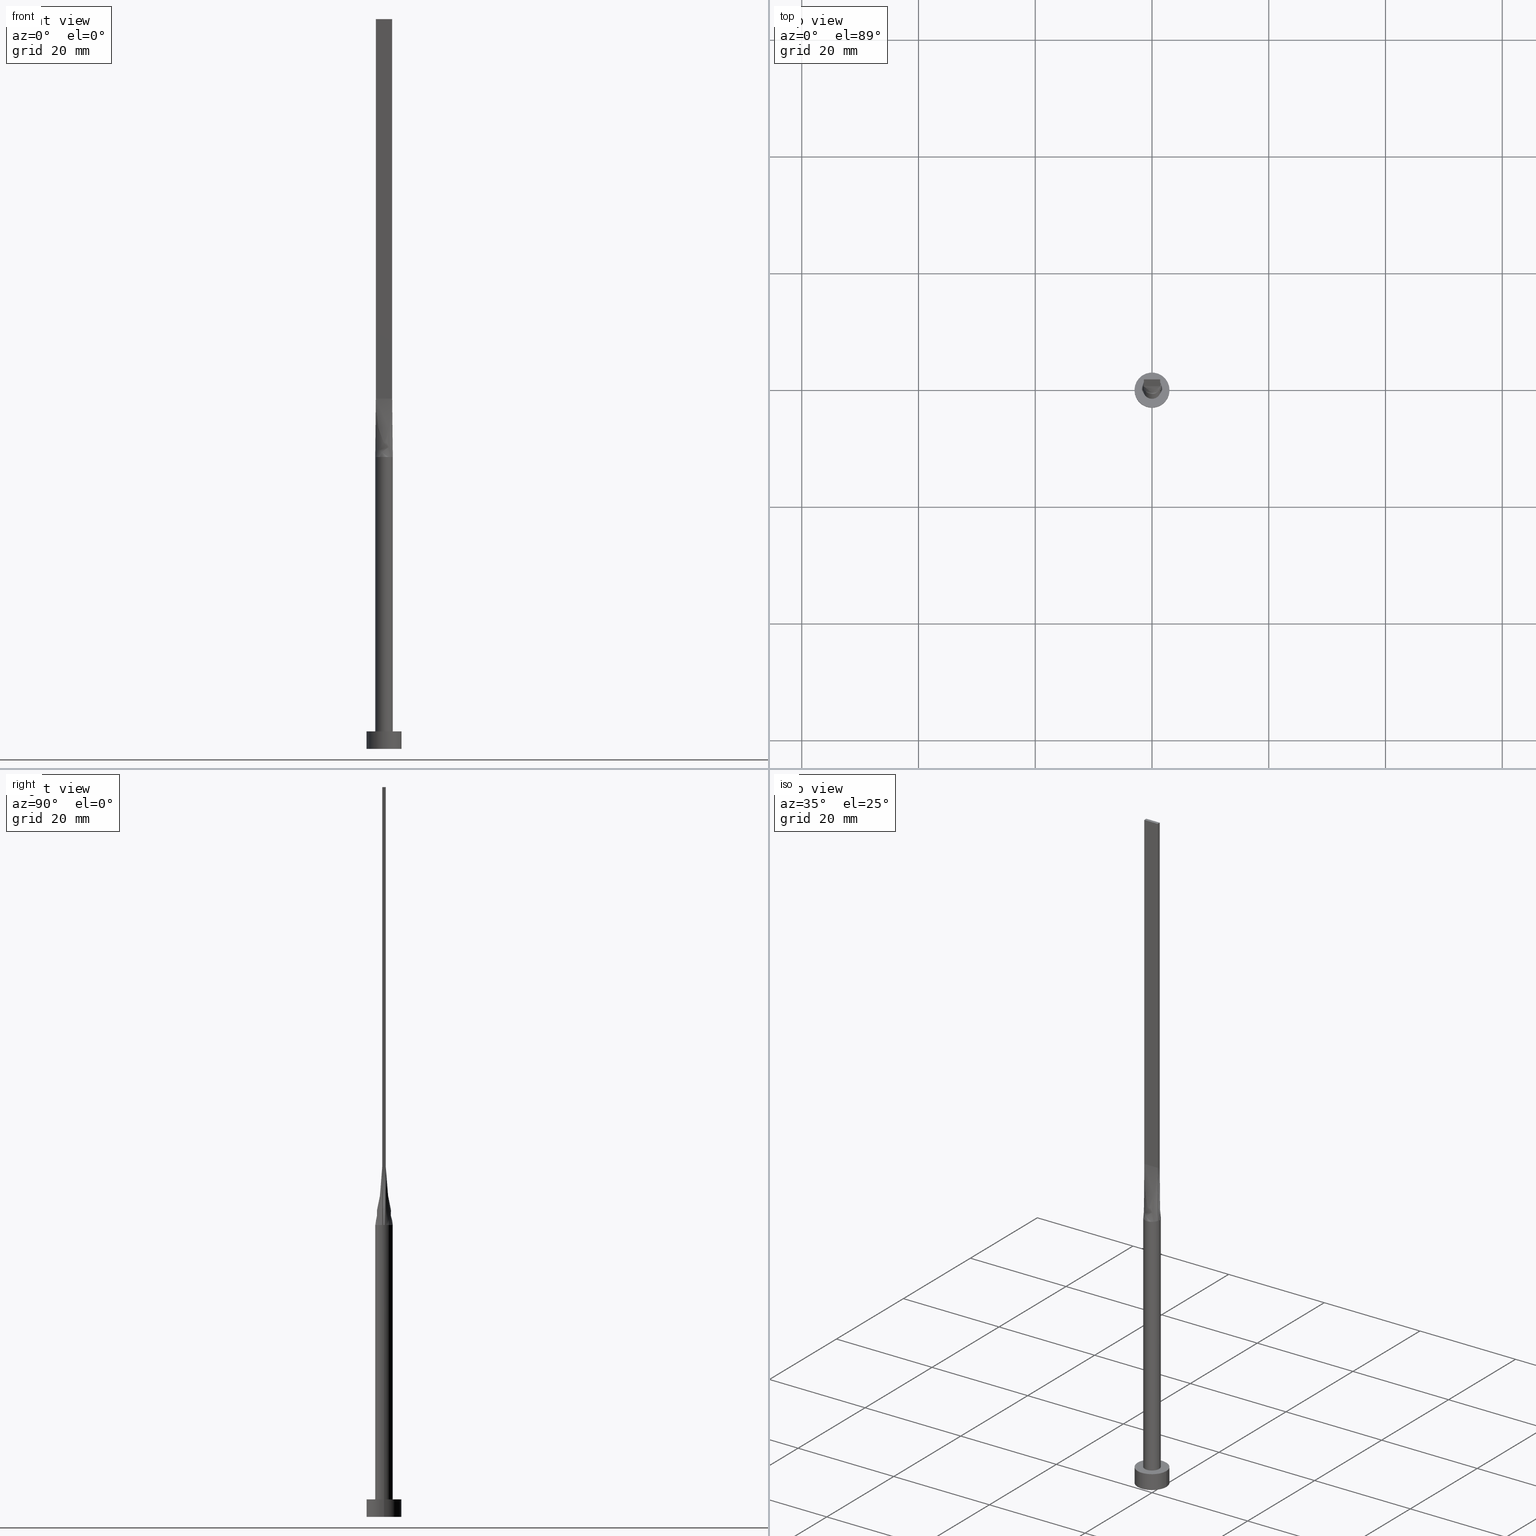
[diagram: canonical four-view strip — front | top / right | iso, engineering-drawing reading convention]
A machine part, canonical four-view strip (front | top / right | iso — engineering-drawing reading convention). The complete STEP part file that produces these views, byte-faithful:
ISO-10303-21;
HEADER;
FILE_DESCRIPTION (( 'STEP AP203' ),
    '1' );
FILE_NAME ('3a38.STEP',
    '2026-02-12T09:00:29',
    ( '' ),
    ( '' ),
    'SwSTEP 2.0',
    'SolidWorks 2019',
    '' );
FILE_SCHEMA (( 'CONFIG_CONTROL_DESIGN' ));
ENDSEC;

DATA;
#1 = DATE_AND_TIME ( #216, #528 ) ;
#2 = CARTESIAN_POINT ( 'NONE',  ( 0.7614511870148451544, -1.306864626778804439, 49.99999999999999289 ) ) ;
#3 = PERSON_AND_ORGANIZATION_ROLE ( 'design_owner' ) ;
#4 = ORIENTED_EDGE ( 'NONE', *, *, #84, .T. ) ;
#5 = CARTESIAN_POINT ( 'NONE',  ( -0.8166666666666674290, -0.2999999999999996003, 60.00000000000000000 ) ) ;
#6 = CARTESIAN_POINT ( 'NONE',  ( 0.9173979595380679086, 1.199399801402031285, 50.00000000000001421 ) ) ;
#7 = CARTESIAN_POINT ( 'NONE',  ( -1.433351810558057160, 0.3071468165481554546, 55.00000000000000711 ) ) ;
#8 = CARTESIAN_POINT ( 'NONE',  ( -0.9173979595380679086, 1.199399801402030397, 50.00000000000000000 ) ) ;
#9 = APPROVAL_DATE_TIME ( #1, #466 ) ;
#10 = VECTOR ( 'NONE', #210, 1000.000000000000000 ) ;
#11 = VERTEX_POINT ( 'NONE', #441 ) ;
#12 = DIRECTION ( 'NONE',  ( 1.000000000000000000, 0.000000000000000000, 0.000000000000000000 ) ) ;
#13 = LINE ( 'NONE', #494, #289 ) ;
#14 = ORIENTED_EDGE ( 'NONE', *, *, #550, .F. ) ;
#15 = CARTESIAN_POINT ( 'NONE',  ( -1.399999999999999689, 0.3000000000000002109, 125.0000000000000000 ) ) ;
#16 = CARTESIAN_POINT ( 'NONE',  ( -1.399999999999999911, -0.2999999999999996003, 60.00000000000000711 ) ) ;
#17 = CC_DESIGN_APPROVAL ( #505, ( #122 ) ) ;
#18 = APPROVAL_PERSON_ORGANIZATION ( #188, #300, #486 ) ;
#19 = CARTESIAN_POINT ( 'NONE',  ( 1.399999999999999689, 0.3000000000000002109, 125.0000000000000000 ) ) ;
#20 = ORIENTED_EDGE ( 'NONE', *, *, #228, .F. ) ;
#21 = EDGE_LOOP ( 'NONE', ( #497, #92, #192, #555, #14 ) ) ;
#22 = CARTESIAN_POINT ( 'NONE',  ( 0.000000000000000000, 0.000000000000000000, 3.000000000000000000 ) ) ;
#23 = LINE ( 'NONE', #297, #488 ) ;
#24 = EDGE_LOOP ( 'NONE', ( #70, #429 ) ) ;
#25 = DIRECTION ( 'NONE',  ( 1.000000000000000000, 0.000000000000000000, -0.000000000000000000 ) ) ;
#26 = CARTESIAN_POINT ( 'NONE',  ( 1.399999999999999689, 0.3000000000000002109, 60.00000000000000711 ) ) ;
#27 = CC_DESIGN_DATE_AND_TIME_ASSIGNMENT ( #462, #193, ( #120 ) ) ;
#28 = CARTESIAN_POINT ( 'NONE',  ( 1.399999999999999689, 0.3000000000000002109, 125.0000000000000000 ) ) ;
#29 = LINE ( 'NONE', #211, #119 ) ;
#30 = AXIS2_PLACEMENT_3D ( 'NONE', #397, #521, #436 ) ;
#31 = EDGE_LOOP ( 'NONE', ( #358, #563 ) ) ;
#32 = B_SPLINE_SURFACE_WITH_KNOTS ( 'NONE', 3, 1, ( 
 ( #191, #543 ),
 ( #136, #91 ),
 ( #86, #227 ),
 ( #372, #279 ),
 ( #285, #538 ),
 ( #6, #181 ),
 ( #359, #133 ),
 ( #459, #316 ),
 ( #52, #315 ),
 ( #493, #366 ),
 ( #414, #89 ),
 ( #276, #456 ),
 ( #8, #186 ),
 ( #520, #331 ),
 ( #522, #513 ),
 ( #112, #107 ),
 ( #114, #69 ),
 ( #440, #260 ) ),
 .UNSPECIFIED., .F., .F., .F.,
 ( 4, 2, 2, 2, 2, 2, 2, 2, 4 ),
 ( 2, 2 ),
 ( 0.000000000000000000, 0.1249999999999999445, 0.2499999999999998890, 0.3749999999999998890, 0.4999999999999998890, 0.6249999999999998890, 0.7500000000000000000, 0.8749999999999998890, 1.000000000000000000 ),
 ( 0.000000000000000000, 1.000000000000000000 ),
 .UNSPECIFIED. ) ;
#33 =( NAMED_UNIT ( * ) SI_UNIT ( $, .STERADIAN. ) SOLID_ANGLE_UNIT ( ) );
#34 = PLANE ( 'NONE',  #226 ) ;
#35 =( LENGTH_UNIT ( ) NAMED_UNIT ( * ) SI_UNIT ( .MILLI., .METRE. ) );
#36 = ADVANCED_FACE ( 'NONE', ( #537 ), #525, .T. ) ;
#37 = CARTESIAN_POINT ( 'NONE',  ( 0.1166666666666654889, -0.2999999999999997113, 60.00000000000000000 ) ) ;
#38 = APPROVAL_DATE_TIME ( #326, #505 ) ;
#39 = VECTOR ( 'NONE', #383, 1000.000000000000000 ) ;
#40 = FACE_OUTER_BOUND ( 'NONE', #24, .T. ) ;
#41 = CARTESIAN_POINT ( 'NONE',  ( 0.000000000000000000, 0.000000000000000000, 50.00000000000000000 ) ) ;
#42 = PERSON_AND_ORGANIZATION ( #420, #73 ) ;
#43 = EDGE_CURVE ( 'NONE', #208, #387, #396, .T. ) ;
#44 = ADVANCED_FACE ( 'NONE', ( #40 ), #348, .F. ) ;
#45 = EDGE_CURVE ( 'NONE', #363, #88, #159, .T. ) ;
#46 = DIRECTION ( 'NONE',  ( -1.000000000000000000, 0.000000000000000000, 0.000000000000000000 ) ) ;
#47 = CARTESIAN_POINT ( 'NONE',  ( 1.399999999999999689, 0.3000000000000002109, 125.0000000000000000 ) ) ;
#48 = AXIS2_PLACEMENT_3D ( 'NONE', #322, #501, #357 ) ;
#49 = CC_DESIGN_APPROVAL ( #466, ( #558 ) ) ;
#50 = ORIENTED_EDGE ( 'NONE', *, *, #580, .T. ) ;
#51 = DIRECTION ( 'NONE',  ( 0.000000000000000000, 0.000000000000000000, 1.000000000000000000 ) ) ;
#52 = CARTESIAN_POINT ( 'NONE',  ( 0.2021039475585061640, 1.500000000000000222, 50.00000000000000000 ) ) ;
#53 = CARTESIAN_POINT ( 'NONE',  ( -0.9173979595380679086, 1.199399801402030397, 50.00000000000000000 ) ) ;
#54 = DIRECTION ( 'NONE',  ( 1.000000000000000000, 0.000000000000000000, 0.000000000000000000 ) ) ;
#55 = ORIENTED_EDGE ( 'NONE', *, *, #109, .T. ) ;
#56 = CARTESIAN_POINT ( 'NONE',  ( -0.7614511870148460426, 1.306864626778804661, 49.99999999999999289 ) ) ;
#57 = CARTESIAN_POINT ( 'NONE',  ( -1.399999999999999689, 0.3000000000000002109, 60.00000000000000711 ) ) ;
#58 = CARTESIAN_POINT ( 'NONE',  ( -0.4035854070682471928, 1.457676878506885432, 50.00000000000000000 ) ) ;
#59 = ORIENTED_EDGE ( 'NONE', *, *, #75, .T. ) ;
#60 = AXIS2_PLACEMENT_3D ( 'NONE', #388, #263, #259 ) ;
#61 = CARTESIAN_POINT ( 'NONE',  ( 1.398339371956842880, 0.5625704264602660043, 50.00000000000000000 ) ) ;
#62 = CARTESIAN_POINT ( 'NONE',  ( 0.000000000000000000, 0.000000000000000000, 50.00000000000000000 ) ) ;
#63 = ORIENTED_EDGE ( 'NONE', *, *, #182, .T. ) ;
#64 = CYLINDRICAL_SURFACE ( 'NONE', #257, 1.500000000000000222 ) ;
#65 = DIRECTION ( 'NONE',  ( -0.006670206908340743472, -0.001429330051787282068, -0.9999767324070110153 ) ) ;
#66 = EDGE_CURVE ( 'NONE', #88, #542, #90, .T. ) ;
#67 = ORIENTED_EDGE ( 'NONE', *, *, #84, .F. ) ;
#68 = PLANE ( 'NONE',  #60 ) ;
#69 = CARTESIAN_POINT ( 'NONE',  ( -1.283333333333332993, 0.3000000000000002665, 60.00000000000000000 ) ) ;
#70 = ORIENTED_EDGE ( 'NONE', *, *, #158, .F. ) ;
#71 = FACE_OUTER_BOUND ( 'NONE', #470, .T. ) ;
#72 = CARTESIAN_POINT ( 'NONE',  ( 1.399999999999999689, 0.2000000000000001499, 60.00000000000000000 ) ) ;
#73 = ORGANIZATION ( 'NEUR�EN�', 'NEUR�EN�', '' ) ;
#74 = DIRECTION ( 'NONE',  ( 1.000000000000000000, 0.000000000000000000, 0.000000000000000000 ) ) ;
#75 = EDGE_CURVE ( 'NONE', #433, #155, #85, .T. ) ;
#76 = CARTESIAN_POINT ( 'NONE',  ( 0.000000000000000000, 0.000000000000000000, 50.00000000000000000 ) ) ;
#77 = CARTESIAN_POINT ( 'NONE',  ( 1.433351810558057160, -0.3071468165481548440, 55.00000000000000711 ) ) ;
#78 = FACE_OUTER_BOUND ( 'NONE', #185, .T. ) ;
#79 = APPLICATION_PROTOCOL_DEFINITION ( 'international standard', 'config_control_design', 1994, #477 ) ;
#80 = AXIS2_PLACEMENT_3D ( 'NONE', #206, #434, #113 ) ;
#81 = CARTESIAN_POINT ( 'NONE',  ( 0.9333333333333325710, -0.2999999999999997113, 60.00000000000000000 ) ) ;
#82 = DIRECTION ( 'NONE',  ( 0.000000000000000000, 0.000000000000000000, 1.000000000000000000 ) ) ;
#83 = ORIENTED_EDGE ( 'NONE', *, *, #530, .T. ) ;
#84 = EDGE_CURVE ( 'NONE', #367, #239, #268, .T. ) ;
#85 = LINE ( 'NONE', #314, #518 ) ;
#86 = CARTESIAN_POINT ( 'NONE',  ( 1.398339371956842880, 0.5625704264602660043, 50.00000000000000000 ) ) ;
#87 = ORIENTED_EDGE ( 'NONE', *, *, #43, .F. ) ;
#88 = VERTEX_POINT ( 'NONE', #534 ) ;
#89 = CARTESIAN_POINT ( 'NONE',  ( -0.2333333333333325599, 0.3000000000000001554, 60.00000000000000000 ) ) ;
#90 = CIRCLE ( 'NONE', #417, 1.500000000000000222 ) ;
#91 = CARTESIAN_POINT ( 'NONE',  ( 1.283333333333333215, 0.3000000000000002109, 60.00000000000000711 ) ) ;
#92 = ORIENTED_EDGE ( 'NONE', *, *, #66, .T. ) ;
#93 = VERTEX_POINT ( 'NONE', #529 ) ;
#94 = ADVANCED_FACE ( 'NONE', ( #78 ), #117, .T. ) ;
#95 = ORIENTED_EDGE ( 'NONE', *, *, #580, .F. ) ;
#96 = CARTESIAN_POINT ( 'NONE',  ( -0.2021039475585064971, 1.499999999999999556, 50.00000000000000711 ) ) ;
#97 = CARTESIAN_POINT ( 'NONE',  ( -1.399999999999999689, 0.3000000000000002109, 125.0000000000000000 ) ) ;
#98 = APPROVAL_STATUS ( 'not_yet_approved' ) ;
#99 = ORIENTED_EDGE ( 'NONE', *, *, #347, .T. ) ;
#100 = CARTESIAN_POINT ( 'NONE',  ( -1.466842056764351865, 0.3143233427268645186, 50.00000000000000000 ) ) ;
#101 = DATE_AND_TIME ( #224, #381 ) ;
#102 = CARTESIAN_POINT ( 'NONE',  ( -1.441093865018553410, 0.4338058282182611913, 49.99999999999999289 ) ) ;
#103 = B_SPLINE_CURVE_WITH_KNOTS ( 'NONE', 3,
 ( #321, #106, #61, #246, #460, #431, #292, #329, #241, #96, #58, #56, #53, #190, #325, #468, #102, #100 ),
 .UNSPECIFIED., .F., .F.,
 ( 4, 2, 2, 2, 2, 2, 2, 2, 4 ),
 ( 0.000000000000000000, 0.1249999999999999445, 0.2499999999999998890, 0.3749999999999998890, 0.4999999999999998890, 0.6249999999999998890, 0.7500000000000000000, 0.8749999999999998890, 1.000000000000000000 ),
 .UNSPECIFIED. ) ;
#104 = CARTESIAN_POINT ( 'NONE',  ( 0.000000000000000000, 0.000000000000000000, 125.0000000000000000 ) ) ;
#105 = VERTEX_POINT ( 'NONE', #141 ) ;
#106 = CARTESIAN_POINT ( 'NONE',  ( 1.441093865018553410, 0.4338058282182615244, 50.00000000000000000 ) ) ;
#107 = CARTESIAN_POINT ( 'NONE',  ( -1.166666666666666075, 0.3000000000000002665, 60.00000000000000000 ) ) ;
#108 = ORIENTED_EDGE ( 'NONE', *, *, #43, .T. ) ;
#109 = EDGE_CURVE ( 'NONE', #143, #382, #272, .T. ) ;
#110 = VECTOR ( 'NONE', #288, 1000.000000000000000 ) ;
#111 = DIRECTION ( 'NONE',  ( -0.000000000000000000, -0.000000000000000000, -1.000000000000000000 ) ) ;
#112 = CARTESIAN_POINT ( 'NONE',  ( -1.398339371956843102, 0.5625704264602656712, 49.99999999999997868 ) ) ;
#113 = DIRECTION ( 'NONE',  ( -1.000000000000000000, 5.808225924029488744E-17, 0.000000000000000000 ) ) ;
#114 = CARTESIAN_POINT ( 'NONE',  ( -1.441093865018553410, 0.4338058282182611913, 49.99999999999999289 ) ) ;
#115 = DIRECTION ( 'NONE',  ( 1.000000000000000000, -3.614007241618349264E-16, 0.000000000000000000 ) ) ;
#116 = CARTESIAN_POINT ( 'NONE',  ( 1.399999999999999911, -0.1999999999999997891, 60.00000000000000000 ) ) ;
#117 = B_SPLINE_SURFACE_WITH_KNOTS ( 'NONE', 3, 1, ( 
 ( #124, #127 ),
 ( #126, #215 ),
 ( #399, #308 ),
 ( #451, #409 ),
 ( #578, #5 ),
 ( #484, #180 ),
 ( #262, #536 ),
 ( #132, #265 ),
 ( #443, #450 ),
 ( #310, #37 ),
 ( #171, #223 ),
 ( #2, #581 ),
 ( #405, #174 ),
 ( #351, #311 ),
 ( #489, #81 ),
 ( #547, #452 ),
 ( #553, #234 ),
 ( #540, #413 ) ),
 .UNSPECIFIED., .F., .F., .F.,
 ( 4, 2, 2, 2, 2, 2, 2, 2, 4 ),
 ( 2, 2 ),
 ( 0.000000000000000000, 0.1250000000000000000, 0.2500000000000000000, 0.3750000000000000000, 0.5000000000000000000, 0.6250000000000000000, 0.7500000000000000000, 0.8750000000000000000, 1.000000000000000000 ),
 ( 0.000000000000000000, 1.000000000000000000 ),
 .UNSPECIFIED. ) ;
#118 = CYLINDRICAL_SURFACE ( 'NONE', #454, 1.500000000000000222 ) ;
#119 = VECTOR ( 'NONE', #164, 1000.000000000000000 ) ;
#120 = SECURITY_CLASSIFICATION ( '', '', #286 ) ;
#121 = EDGE_CURVE ( 'NONE', #93, #387, #461, .T. ) ;
#122 = PRODUCT_DEFINITION ( 'NEZN�M�', '', #558, #177 ) ;
#123 = EDGE_CURVE ( 'NONE', #239, #162, #187, .T. ) ;
#124 = CARTESIAN_POINT ( 'NONE',  ( -1.466703621116114409, -0.3142936330963096436, 50.00000000000000000 ) ) ;
#125 = PLANE ( 'NONE',  #80 ) ;
#126 = CARTESIAN_POINT ( 'NONE',  ( -1.441093865018553632, -0.4338058282182608583, 50.00000000000001421 ) ) ;
#127 = CARTESIAN_POINT ( 'NONE',  ( -1.399999999999999911, -0.2999999999999996003, 60.00000000000000711 ) ) ;
#128 = EDGE_CURVE ( 'NONE', #367, #105, #305, .T. ) ;
#129 = MECHANICAL_CONTEXT ( 'NONE', #477, 'mechanical' ) ;
#130 = ORIENTED_EDGE ( 'NONE', *, *, #301, .F. ) ;
#131 = AXIS2_PLACEMENT_3D ( 'NONE', #333, #564, #261 ) ;
#132 = CARTESIAN_POINT ( 'NONE',  ( -0.4035854070682473038, -1.457676878506884988, 50.00000000000000711 ) ) ;
#133 = CARTESIAN_POINT ( 'NONE',  ( 0.4666666666666673402, 0.3000000000000001554, 60.00000000000000000 ) ) ;
#134 = DIRECTION ( 'NONE',  ( 0.006670206908340743472, -0.001429330051787325653, 0.9999767324070110153 ) ) ;
#135 = VERTEX_POINT ( 'NONE', #97 ) ;
#136 = CARTESIAN_POINT ( 'NONE',  ( 1.441093865018553410, 0.4338058282182615244, 50.00000000000000000 ) ) ;
#137 = AXIS2_PLACEMENT_3D ( 'NONE', #184, #231, #54 ) ;
#138 = COORDINATED_UNIVERSAL_TIME_OFFSET ( 1, 0, .AHEAD. ) ;
#139 = ORIENTED_EDGE ( 'NONE', *, *, #377, .F. ) ;
#140 = DIRECTION ( 'NONE',  ( 0.000000000000000000, 0.000000000000000000, 1.000000000000000000 ) ) ;
#141 = CARTESIAN_POINT ( 'NONE',  ( -3.000000000000000444, 0.000000000000000000, 3.000000000000000000 ) ) ;
#142 = ORIENTED_EDGE ( 'NONE', *, *, #182, .F. ) ;
#143 = VERTEX_POINT ( 'NONE', #411 ) ;
#144 = PERSON_AND_ORGANIZATION ( #420, #73 ) ;
#145 = EDGE_LOOP ( 'NONE', ( #67, #551, #492, #323 ) ) ;
#146 = LINE ( 'NONE', #561, #317 ) ;
#147 = DIRECTION ( 'NONE',  ( 1.000000000000000000, 0.000000000000000000, 0.000000000000000000 ) ) ;
#148 = CALENDAR_DATE ( 2026, 12, 2 ) ;
#149 = EDGE_CURVE ( 'NONE', #248, #433, #13, .T. ) ;
#150 = CARTESIAN_POINT ( 'NONE',  ( -1.399999999999999689, 0.1000000000000004913, 60.00000000000000000 ) ) ;
#151 = CIRCLE ( 'NONE', #343, 1.500000000000000222 ) ;
#152 = LOCAL_TIME ( 10, 0, 29.00000000000000000, #416 ) ;
#153 = DIRECTION ( 'NONE',  ( -3.614007241618349264E-16, -1.000000000000000000, 0.000000000000000000 ) ) ;
#154 = CARTESIAN_POINT ( 'NONE',  ( 0.000000000000000000, 0.000000000000000000, 3.000000000000000000 ) ) ;
#155 = VERTEX_POINT ( 'NONE', #47 ) ;
#156 = DIRECTION ( 'NONE',  ( 3.614007241618349264E-16, 1.000000000000000000, 0.000000000000000000 ) ) ;
#157 = CARTESIAN_POINT ( 'NONE',  ( 1.399999999999999911, -0.2999999999999997669, 60.00000000000000711 ) ) ;
#158 = EDGE_CURVE ( 'NONE', #162, #239, #544, .T. ) ;
#159 = CIRCLE ( 'NONE', #356, 1.500000000000000222 ) ;
#160 = FACE_OUTER_BOUND ( 'NONE', #244, .T. ) ;
#161 = CARTESIAN_POINT ( 'NONE',  ( -1.399999999999999911, -0.2999999999999996003, 125.0000000000000000 ) ) ;
#162 = VERTEX_POINT ( 'NONE', #318 ) ;
#163 = FACE_OUTER_BOUND ( 'NONE', #490, .T. ) ;
#164 = DIRECTION ( 'NONE',  ( -0.000000000000000000, -0.000000000000000000, -1.000000000000000000 ) ) ;
#165 = ADVANCED_FACE ( 'NONE', ( #362 ), #32, .T. ) ;
#166 = DIRECTION ( 'NONE',  ( 0.000000000000000000, 0.000000000000000000, 1.000000000000000000 ) ) ;
#167 = FACE_OUTER_BOUND ( 'NONE', #21, .T. ) ;
#168 = ADVANCED_FACE ( 'NONE', ( #340, #386 ), #34, .T. ) ;
#169 = B_SPLINE_SURFACE_WITH_KNOTS ( 'NONE', 3, 1, ( 
 ( #342, #157 ),
 ( #251, #116 ),
 ( #247, #432 ),
 ( #303, #480 ),
 ( #435, #72 ),
 ( #334, #26 ) ),
 .UNSPECIFIED., .F., .F., .F.,
 ( 4, 2, 4 ),
 ( 2, 2 ),
 ( 0.000000000000000000, 0.5000000000000000000, 1.000000000000000000 ),
 ( 0.000000000000000000, 1.000000000000000000 ),
 .UNSPECIFIED. ) ;
#170 = DIRECTION ( 'NONE',  ( 0.000000000000000000, 0.000000000000000000, 1.000000000000000000 ) ) ;
#171 = CARTESIAN_POINT ( 'NONE',  ( 0.4035854070682468042, -1.457676878506885210, 50.00000000000000000 ) ) ;
#172 = COORDINATED_UNIVERSAL_TIME_OFFSET ( 1, 0, .AHEAD. ) ;
#173 = CC_DESIGN_PERSON_AND_ORGANIZATION_ASSIGNMENT ( #42, #498, ( #122 ) ) ;
#174 = CARTESIAN_POINT ( 'NONE',  ( 0.5833333333333323711, -0.2999999999999997113, 60.00000000000000000 ) ) ;
#175 = DATE_AND_TIME ( #349, #455 ) ;
#176 = DIRECTION ( 'NONE',  ( 1.000000000000000000, 0.000000000000000000, 0.000000000000000000 ) ) ;
#177 = DESIGN_CONTEXT ( 'detailed design', #378, 'design' ) ;
#178 = DIRECTION ( 'NONE',  ( -0.000000000000000000, -0.000000000000000000, -1.000000000000000000 ) ) ;
#179 = AXIS2_PLACEMENT_3D ( 'NONE', #355, #82, #421 ) ;
#180 = CARTESIAN_POINT ( 'NONE',  ( -0.5833333333333343695, -0.2999999999999996558, 60.00000000000000000 ) ) ;
#181 = CARTESIAN_POINT ( 'NONE',  ( 0.5833333333333339255, 0.3000000000000001554, 60.00000000000000000 ) ) ;
#182 = EDGE_CURVE ( 'NONE', #135, #387, #567, .T. ) ;
#183 = EDGE_CURVE ( 'NONE', #248, #545, #389, .T. ) ;
#184 = CARTESIAN_POINT ( 'NONE',  ( 0.000000000000000000, 0.000000000000000000, 0.000000000000000000 ) ) ;
#185 = EDGE_LOOP ( 'NONE', ( #412, #360, #533, #350 ) ) ;
#186 = CARTESIAN_POINT ( 'NONE',  ( -0.5833333333333327042, 0.3000000000000002109, 60.00000000000000000 ) ) ;
#187 = CIRCLE ( 'NONE', #137, 3.000000000000000444 ) ;
#188 = PERSON_AND_ORGANIZATION ( #420, #73 ) ;
#189 = EDGE_LOOP ( 'NONE', ( #474, #4, #256, #249 ) ) ;
#190 = CARTESIAN_POINT ( 'NONE',  ( -1.167251067653078289, 0.9579686032593087708, 50.00000000000001421 ) ) ;
#191 = CARTESIAN_POINT ( 'NONE',  ( 1.466703621116114409, 0.3142936330963102542, 50.00000000000000000 ) ) ;
#192 = ORIENTED_EDGE ( 'NONE', *, *, #301, .T. ) ;
#193 = DATE_TIME_ROLE ( 'classification_date' ) ;
#194 = PRODUCT_RELATED_PRODUCT_CATEGORY ( 'detail', '', ( #403 ) ) ;
#195 = EDGE_CURVE ( 'NONE', #545, #11, #23, .T. ) ;
#196 = ORIENTED_EDGE ( 'NONE', *, *, #183, .T. ) ;
#197 = CARTESIAN_POINT ( 'NONE',  ( -1.488654840628309328, 0.2118546087060662608, 50.00000000000000000 ) ) ;
#198 = CARTESIAN_POINT ( 'NONE',  ( -3.000000000000000444, 0.000000000000000000, 3.000000000000000000 ) ) ;
#199 = CC_DESIGN_SECURITY_CLASSIFICATION ( #120, ( #558 ) ) ;
#200 = DIRECTION ( 'NONE',  ( -1.000000000000000000, 0.000000000000000000, 0.000000000000000000 ) ) ;
#201 = EDGE_LOOP ( 'NONE', ( #504, #20, #205, #196 ) ) ;
#202 = ORIENTED_EDGE ( 'NONE', *, *, #425, .F. ) ;
#203 = DIRECTION ( 'NONE',  ( -0.000000000000000000, -0.000000000000000000, -1.000000000000000000 ) ) ;
#204 = FACE_OUTER_BOUND ( 'NONE', #235, .T. ) ;
#205 = ORIENTED_EDGE ( 'NONE', *, *, #149, .F. ) ;
#206 = CARTESIAN_POINT ( 'NONE',  ( -1.399999999999999911, -0.2999999999999996003, 125.0000000000000000 ) ) ;
#207 = CARTESIAN_POINT ( 'NONE',  ( 1.399999999999999689, 0.3000000000000002109, 60.00000000000000711 ) ) ;
#208 = VERTEX_POINT ( 'NONE', #478 ) ;
#209 = VECTOR ( 'NONE', #203, 1000.000000000000000 ) ;
#210 = DIRECTION ( 'NONE',  ( -0.000000000000000000, -0.000000000000000000, -1.000000000000000000 ) ) ;
#211 = CARTESIAN_POINT ( 'NONE',  ( 1.399999999999999911, -0.2999999999999997669, 125.0000000000000000 ) ) ;
#212 = DIRECTION ( 'NONE',  ( -0.000000000000000000, -0.000000000000000000, -1.000000000000000000 ) ) ;
#213 = DIRECTION ( 'NONE',  ( -0.000000000000000000, -0.000000000000000000, -1.000000000000000000 ) ) ;
#214 = CARTESIAN_POINT ( 'NONE',  ( 1.399999999999999911, -0.2999999999999997669, 125.0000000000000000 ) ) ;
#215 = CARTESIAN_POINT ( 'NONE',  ( -1.283333333333333437, -0.2999999999999996003, 60.00000000000000711 ) ) ;
#216 = CALENDAR_DATE ( 2026, 12, 2 ) ;
#217 = VECTOR ( 'NONE', #491, 1000.000000000000000 ) ;
#218 = VERTEX_POINT ( 'NONE', #394 ) ;
#219 = ADVANCED_FACE ( 'NONE', ( #294 ), #476, .T. ) ;
#220 = CARTESIAN_POINT ( 'NONE',  ( 0.000000000000000000, 0.000000000000000000, 0.000000000000000000 ) ) ;
#221 = APPROVAL_ROLE ( '' ) ;
#222 = PRODUCT_DEFINITION_SHAPE ( 'NONE', 'NONE',  #122 ) ;
#223 = CARTESIAN_POINT ( 'NONE',  ( 0.2333333333333321713, -0.2999999999999997113, 60.00000000000000000 ) ) ;
#224 = CALENDAR_DATE ( 2026, 12, 2 ) ;
#225 = DIRECTION ( 'NONE',  ( -1.000000000000000000, -0.000000000000000000, -0.000000000000000000 ) ) ;
#226 = AXIS2_PLACEMENT_3D ( 'NONE', #338, #573, #392 ) ;
#227 = CARTESIAN_POINT ( 'NONE',  ( 1.166666666666666741, 0.3000000000000002109, 60.00000000000000711 ) ) ;
#228 = EDGE_CURVE ( 'NONE', #433, #407, #29, .T. ) ;
#229 = ADVANCED_FACE ( 'NONE', ( #204 ), #118, .T. ) ;
#230 = DIRECTION ( 'NONE',  ( 1.000000000000000000, -5.808225924029488744E-17, 0.000000000000000000 ) ) ;
#231 = DIRECTION ( 'NONE',  ( 0.000000000000000000, 0.000000000000000000, 1.000000000000000000 ) ) ;
#232 = PERSON_AND_ORGANIZATION_ROLE ( 'design_supplier' ) ;
#233 = CARTESIAN_POINT ( 'NONE',  ( 3.000000000000000444, 3.673940397442060361E-16, 3.000000000000000000 ) ) ;
#234 = CARTESIAN_POINT ( 'NONE',  ( 1.283333333333332993, -0.2999999999999997113, 60.00000000000000000 ) ) ;
#235 = EDGE_LOOP ( 'NONE', ( #202, #287, #535, #463, #55, #430 ) ) ;
#236 = ADVANCED_FACE ( 'NONE', ( #167 ), #169, .T. ) ;
#237 = CIRCLE ( 'NONE', #527, 1.500000000000000222 ) ;
#238 = PERSON_AND_ORGANIZATION_ROLE ( 'classification_officer' ) ;
#239 = VERTEX_POINT ( 'NONE', #526 ) ;
#240 = CARTESIAN_POINT ( 'NONE',  ( 1.433351810558057160, 0.3071468165481550106, 55.00000000000000711 ) ) ;
#241 = CARTESIAN_POINT ( 'NONE',  ( 0.2021039475585061640, 1.500000000000000222, 50.00000000000000000 ) ) ;
#242 = CARTESIAN_POINT ( 'NONE',  ( -1.399999999999999911, -0.2999999999999996003, 125.0000000000000000 ) ) ;
#243 =( GEOMETRIC_REPRESENTATION_CONTEXT ( 3 ) GLOBAL_UNCERTAINTY_ASSIGNED_CONTEXT ( ( #481 ) ) GLOBAL_UNIT_ASSIGNED_CONTEXT ( ( #35, #309, #33 ) ) REPRESENTATION_CONTEXT ( 'NONE', 'WORKASPACE' ) );
#244 = EDGE_LOOP ( 'NONE', ( #252, #560, #370, #63 ) ) ;
#245 = EDGE_CURVE ( 'NONE', #407, #208, #307, .T. ) ;
#246 = CARTESIAN_POINT ( 'NONE',  ( 1.261673556793541540, 0.8246322331683844098, 49.99999999999999289 ) ) ;
#247 = CARTESIAN_POINT ( 'NONE',  ( 1.499630450384406899, -0.1059273043530333108, 50.00000000000000000 ) ) ;
#248 = VERTEX_POINT ( 'NONE', #242 ) ;
#249 = ORIENTED_EDGE ( 'NONE', *, *, #395, .F. ) ;
#250 = DIRECTION ( 'NONE',  ( 0.000000000000000000, 0.000000000000000000, 1.000000000000000000 ) ) ;
#251 = CARTESIAN_POINT ( 'NONE',  ( 1.488654840628309328, -0.2118546087060664274, 50.00000000000000000 ) ) ;
#252 = ORIENTED_EDGE ( 'NONE', *, *, #336, .T. ) ;
#253 = LINE ( 'NONE', #570, #209 ) ;
#254 = DIRECTION ( 'NONE',  ( -1.000000000000000000, 0.000000000000000000, 0.000000000000000000 ) ) ;
#255 = CC_DESIGN_PERSON_AND_ORGANIZATION_ASSIGNMENT ( #507, #238, ( #120 ) ) ;
#256 = ORIENTED_EDGE ( 'NONE', *, *, #123, .T. ) ;
#257 = AXIS2_PLACEMENT_3D ( 'NONE', #444, #111, #442 ) ;
#258 = MANIFOLD_SOLID_BREP ( 'P�idat vysunut�m5', #304 ) ;
#259 = DIRECTION ( 'NONE',  ( 0.000000000000000000, -0.000000000000000000, -1.000000000000000000 ) ) ;
#260 = CARTESIAN_POINT ( 'NONE',  ( -1.399999999999999689, 0.3000000000000002109, 60.00000000000000711 ) ) ;
#261 = DIRECTION ( 'NONE',  ( 1.000000000000000000, 0.000000000000000000, 0.000000000000000000 ) ) ;
#262 = CARTESIAN_POINT ( 'NONE',  ( -0.7614511870148455985, -1.306864626778803995, 50.00000000000000000 ) ) ;
#263 = DIRECTION ( 'NONE',  ( 0.000000000000000000, -1.000000000000000000, 0.000000000000000000 ) ) ;
#264 = EDGE_CURVE ( 'NONE', #545, #407, #327, .T. ) ;
#265 = CARTESIAN_POINT ( 'NONE',  ( -0.2333333333333345028, -0.2999999999999997113, 60.00000000000000000 ) ) ;
#266 = AXIS2_PLACEMENT_3D ( 'NONE', #446, #213, #46 ) ;
#267 = AXIS2_PLACEMENT_3D ( 'NONE', #519, #115, #156 ) ;
#268 = LINE ( 'NONE', #352, #217 ) ;
#269 = PERSON_AND_ORGANIZATION_ROLE ( 'creator' ) ;
#270 = ORIENTED_EDGE ( 'NONE', *, *, #195, .F. ) ;
#271 = DIRECTION ( 'NONE',  ( -3.614007241618348278E-16, 1.000000000000000000, 0.000000000000000000 ) ) ;
#272 = LINE ( 'NONE', #419, #398 ) ;
#273 = EDGE_CURVE ( 'NONE', #135, #248, #418, .T. ) ;
#274 = CC_DESIGN_PERSON_AND_ORGANIZATION_ASSIGNMENT ( #400, #269, ( #558 ) ) ;
#275 = APPROVAL_PERSON_ORGANIZATION ( #503, #505, #221 ) ;
#276 = CARTESIAN_POINT ( 'NONE',  ( -0.7614511870148460426, 1.306864626778804661, 49.99999999999999289 ) ) ;
#277 = APPROVAL_PERSON_ORGANIZATION ( #144, #466, #312 ) ;
#278 = EDGE_LOOP ( 'NONE', ( #502, #511, #99, #373, #95, #139 ) ) ;
#279 = CARTESIAN_POINT ( 'NONE',  ( 0.9333333333333335702, 0.3000000000000002109, 60.00000000000000000 ) ) ;
#280 = ORIENTED_EDGE ( 'NONE', *, *, #75, .F. ) ;
#281 = EDGE_LOOP ( 'NONE', ( #295, #548, #408, #59 ) ) ;
#282 = ORIENTED_EDGE ( 'NONE', *, *, #539, .F. ) ;
#283 = CC_DESIGN_PERSON_AND_ORGANIZATION_ASSIGNMENT ( #369, #3, ( #403 ) ) ;
#284 = CARTESIAN_POINT ( 'NONE',  ( -1.399999999999999911, -0.1999999999999994837, 60.00000000000000000 ) ) ;
#285 = CARTESIAN_POINT ( 'NONE',  ( 1.167251067653077401, 0.9579686032593092149, 50.00000000000000000 ) ) ;
#286 = SECURITY_CLASSIFICATION_LEVEL ( 'unclassified' ) ;
#287 = ORIENTED_EDGE ( 'NONE', *, *, #45, .F. ) ;
#288 = DIRECTION ( 'NONE',  ( -0.000000000000000000, -0.000000000000000000, -1.000000000000000000 ) ) ;
#289 = VECTOR ( 'NONE', #230, 1000.000000000000000 ) ;
#290 = COORDINATED_UNIVERSAL_TIME_OFFSET ( 1, 0, .AHEAD. ) ;
#291 = CARTESIAN_POINT ( 'NONE',  ( -1.499630450384406899, 0.1059273043530332276, 50.00000000000000000 ) ) ;
#292 = CARTESIAN_POINT ( 'NONE',  ( 0.7614511870148451544, 1.306864626778804883, 50.00000000000000000 ) ) ;
#293 = DIRECTION ( 'NONE',  ( -3.614007241618348278E-16, 1.000000000000000000, -0.000000000000000000 ) ) ;
#294 = FACE_OUTER_BOUND ( 'NONE', #145, .T. ) ;
#295 = ORIENTED_EDGE ( 'NONE', *, *, #319, .T. ) ;
#296 = PLANE ( 'NONE',  #267 ) ;
#297 = CARTESIAN_POINT ( 'NONE',  ( -1.433351810558057160, -0.3071468165481546220, 55.00000000000000711 ) ) ;
#298 = CARTESIAN_POINT ( 'NONE',  ( 0.000000000000000000, 0.000000000000000000, 50.00000000000000000 ) ) ;
#299 = CARTESIAN_POINT ( 'NONE',  ( -1.399999999999999689, 0.3000000000000002109, 125.0000000000000000 ) ) ;
#300 = APPROVAL ( #374, 'NEUR�EN�' ) ;
#301 = EDGE_CURVE ( 'NONE', #542, #208, #427, .T. ) ;
#302 = CARTESIAN_POINT ( 'NONE',  ( 0.000000000000000000, 0.000000000000000000, 50.00000000000000000 ) ) ;
#303 = CARTESIAN_POINT ( 'NONE',  ( 1.499630450384406899, 0.1059273043530329361, 50.00000000000000000 ) ) ;
#304 = CLOSED_SHELL ( 'NONE', ( #524, #36, #219, #168, #44, #229, #94, #236, #354, #165, #562, #458, #569, #467, #404 ) ) ;
#305 = CIRCLE ( 'NONE', #410, 3.000000000000000444 ) ;
#306 = LOCAL_TIME ( 10, 0, 29.00000000000000000, #290 ) ;
#307 = LINE ( 'NONE', #207, #577 ) ;
#308 = CARTESIAN_POINT ( 'NONE',  ( -1.166666666666666963, -0.2999999999999996003, 60.00000000000000711 ) ) ;
#309 =( NAMED_UNIT ( * ) PLANE_ANGLE_UNIT ( ) SI_UNIT ( $, .RADIAN. ) );
#310 = CARTESIAN_POINT ( 'NONE',  ( 0.2021039475585061640, -1.499999999999999778, 49.99999999999999289 ) ) ;
#311 = CARTESIAN_POINT ( 'NONE',  ( 0.8166666666666658747, -0.2999999999999997113, 60.00000000000000000 ) ) ;
#312 = APPROVAL_ROLE ( '' ) ;
#313 = AXIS2_PLACEMENT_3D ( 'NONE', #154, #471, #371 ) ;
#314 = CARTESIAN_POINT ( 'NONE',  ( 1.399999999999999911, -0.2999999999999997669, 125.0000000000000000 ) ) ;
#315 = CARTESIAN_POINT ( 'NONE',  ( 0.1166666666666672375, 0.3000000000000001554, 60.00000000000000000 ) ) ;
#316 = CARTESIAN_POINT ( 'NONE',  ( 0.2333333333333339754, 0.3000000000000001554, 60.00000000000000000 ) ) ;
#317 = VECTOR ( 'NONE', #552, 1000.000000000000000 ) ;
#318 = CARTESIAN_POINT ( 'NONE',  ( -3.000000000000000444, 0.000000000000000000, 0.000000000000000000 ) ) ;
#319 = EDGE_CURVE ( 'NONE', #155, #135, #426, .T. ) ;
#320 = EDGE_LOOP ( 'NONE', ( #422, #541 ) ) ;
#321 = CARTESIAN_POINT ( 'NONE',  ( 1.466825456746648992, 0.3143198820638501978, 50.00000000000000000 ) ) ;
#322 = CARTESIAN_POINT ( 'NONE',  ( 0.000000000000000000, 0.000000000000000000, 0.000000000000000000 ) ) ;
#323 = ORIENTED_EDGE ( 'NONE', *, *, #158, .T. ) ;
#324 = PERSON_AND_ORGANIZATION ( #420, #73 ) ;
#325 = CARTESIAN_POINT ( 'NONE',  ( -1.261673556793542872, 0.8246322331683846318, 50.00000000000001421 ) ) ;
#326 = DATE_AND_TIME ( #148, #152 ) ;
#327 = LINE ( 'NONE', #16, #39 ) ;
#328 = AXIS2_PLACEMENT_3D ( 'NONE', #104, #166, #25 ) ;
#329 = CARTESIAN_POINT ( 'NONE',  ( 0.4035854070682468042, 1.457676878506885654, 49.99999999999998579 ) ) ;
#330 = CARTESIAN_POINT ( 'NONE',  ( -1.499630450384406899, -0.1059273043530328529, 50.00000000000000000 ) ) ;
#331 = CARTESIAN_POINT ( 'NONE',  ( -0.8166666666666662078, 0.3000000000000002665, 60.00000000000000000 ) ) ;
#332 = ORIENTED_EDGE ( 'NONE', *, *, #319, .F. ) ;
#333 = CARTESIAN_POINT ( 'NONE',  ( 0.000000000000000000, 0.000000000000000000, 50.00000000000000000 ) ) ;
#334 = CARTESIAN_POINT ( 'NONE',  ( 1.466703621116114409, 0.3142936330963098102, 50.00000000000000000 ) ) ;
#335 = VECTOR ( 'NONE', #566, 1000.000000000000114 ) ;
#336 = EDGE_CURVE ( 'NONE', #387, #545, #146, .T. ) ;
#337 = FACE_OUTER_BOUND ( 'NONE', #278, .T. ) ;
#338 = CARTESIAN_POINT ( 'NONE',  ( 0.000000000000000000, 0.000000000000000000, 3.000000000000000000 ) ) ;
#339 = DIRECTION ( 'NONE',  ( 0.000000000000000000, 0.000000000000000000, 1.000000000000000000 ) ) ;
#340 = FACE_BOUND ( 'NONE', #320, .T. ) ;
#341 = PLANE ( 'NONE',  #30 ) ;
#342 = CARTESIAN_POINT ( 'NONE',  ( 1.466703621116114409, -0.3142936330963101987, 50.00000000000000000 ) ) ;
#343 = AXIS2_PLACEMENT_3D ( 'NONE', #302, #339, #576 ) ;
#344 = CC_DESIGN_APPROVAL ( #300, ( #120 ) ) ;
#345 = DIRECTION ( 'NONE',  ( 1.000000000000000000, 3.552713678800500929E-15, 0.000000000000000000 ) ) ;
#346 = DIRECTION ( 'NONE',  ( 0.000000000000000000, 0.000000000000000000, 1.000000000000000000 ) ) ;
#347 = EDGE_CURVE ( 'NONE', #218, #382, #473, .T. ) ;
#348 = PLANE ( 'NONE',  #390 ) ;
#349 = CALENDAR_DATE ( 2026, 12, 2 ) ;
#350 = ORIENTED_EDGE ( 'NONE', *, *, #195, .T. ) ;
#351 = CARTESIAN_POINT ( 'NONE',  ( 1.167251067653077401, -0.9579686032593089928, 50.00000000000000711 ) ) ;
#352 = CARTESIAN_POINT ( 'NONE',  ( 3.000000000000000444, 3.673940397442060361E-16, 3.000000000000000000 ) ) ;
#353 = EDGE_CURVE ( 'NONE', #105, #367, #508, .T. ) ;
#354 = ADVANCED_FACE ( 'NONE', ( #469 ), #487, .T. ) ;
#355 = CARTESIAN_POINT ( 'NONE',  ( 0.000000000000000000, 0.000000000000000000, 0.000000000000000000 ) ) ;
#356 = AXIS2_PLACEMENT_3D ( 'NONE', #76, #575, #345 ) ;
#357 = DIRECTION ( 'NONE',  ( 1.000000000000000000, 0.000000000000000000, 0.000000000000000000 ) ) ;
#358 = ORIENTED_EDGE ( 'NONE', *, *, #353, .T. ) ;
#359 = CARTESIAN_POINT ( 'NONE',  ( 0.7614511870148451544, 1.306864626778804883, 50.00000000000000000 ) ) ;
#360 = ORIENTED_EDGE ( 'NONE', *, *, #550, .T. ) ;
#361 = ORIENTED_EDGE ( 'NONE', *, *, #336, .F. ) ;
#362 = FACE_OUTER_BOUND ( 'NONE', #574, .T. ) ;
#363 = VERTEX_POINT ( 'NONE', #556 ) ;
#364 = VECTOR ( 'NONE', #153, 1000.000000000000000 ) ;
#365 = CARTESIAN_POINT ( 'NONE',  ( -1.399999999999999911, -0.2999999999999996558, 60.00000000000000711 ) ) ;
#366 = CARTESIAN_POINT ( 'NONE',  ( -0.1166666666666660440, 0.3000000000000001554, 60.00000000000000000 ) ) ;
#367 = VERTEX_POINT ( 'NONE', #233 ) ;
#368 = ORIENTED_EDGE ( 'NONE', *, *, #377, .T. ) ;
#369 = PERSON_AND_ORGANIZATION ( #420, #73 ) ;
#370 = ORIENTED_EDGE ( 'NONE', *, *, #273, .F. ) ;
#371 = DIRECTION ( 'NONE',  ( 1.000000000000000000, 0.000000000000000000, 0.000000000000000000 ) ) ;
#372 = CARTESIAN_POINT ( 'NONE',  ( 1.261673556793541540, 0.8246322331683844098, 49.99999999999999289 ) ) ;
#373 = ORIENTED_EDGE ( 'NONE', *, *, #109, .F. ) ;
#374 = APPROVAL_STATUS ( 'not_yet_approved' ) ;
#375 = ORIENTED_EDGE ( 'NONE', *, *, #539, .T. ) ;
#376 = CARTESIAN_POINT ( 'NONE',  ( -1.488654840628309328, -0.2118546087060659000, 50.00000000000000000 ) ) ;
#377 = EDGE_CURVE ( 'NONE', #542, #93, #103, .T. ) ;
#378 = APPLICATION_CONTEXT ( 'configuration controlled 3d designs of mechanical parts and assemblies' ) ;
#379 = CARTESIAN_POINT ( 'NONE',  ( -1.399999999999999689, 0.3000000000000002109, 60.00000000000000711 ) ) ;
#380 = AXIS2_PLACEMENT_3D ( 'NONE', #472, #437, #254 ) ;
#381 = LOCAL_TIME ( 10, 0, 29.00000000000000000, #579 ) ;
#382 = VERTEX_POINT ( 'NONE', #423 ) ;
#383 = DIRECTION ( 'NONE',  ( 1.000000000000000000, -5.808225924029488744E-17, 0.000000000000000000 ) ) ;
#384 = ORIENTED_EDGE ( 'NONE', *, *, #121, .F. ) ;
#385 = CARTESIAN_POINT ( 'NONE',  ( 1.399999999999999911, -0.2999999999999997669, 60.00000000000000711 ) ) ;
#386 = FACE_OUTER_BOUND ( 'NONE', #31, .T. ) ;
#387 = VERTEX_POINT ( 'NONE', #57 ) ;
#388 = CARTESIAN_POINT ( 'NONE',  ( 1.399999999999999689, 0.3000000000000002109, 125.0000000000000000 ) ) ;
#389 = LINE ( 'NONE', #161, #464 ) ;
#390 = AXIS2_PLACEMENT_3D ( 'NONE', #220, #170, #401 ) ;
#391 = LINE ( 'NONE', #77, #335 ) ;
#392 = DIRECTION ( 'NONE',  ( 1.000000000000000000, 0.000000000000000000, -0.000000000000000000 ) ) ;
#393 = FACE_OUTER_BOUND ( 'NONE', #201, .T. ) ;
#394 = CARTESIAN_POINT ( 'NONE',  ( 1.500000000000000222, 1.836970198721030181E-16, 3.000000000000000000 ) ) ;
#395 = EDGE_CURVE ( 'NONE', #105, #162, #559, .T. ) ;
#396 = LINE ( 'NONE', #485, #517 ) ;
#397 = CARTESIAN_POINT ( 'NONE',  ( 1.399999999999999911, -0.2999999999999997669, 125.0000000000000000 ) ) ;
#398 = VECTOR ( 'NONE', #178, 1000.000000000000000 ) ;
#399 = CARTESIAN_POINT ( 'NONE',  ( -1.398339371956842880, -0.5625704264602655602, 50.00000000000000711 ) ) ;
#400 = PERSON_AND_ORGANIZATION ( #420, #73 ) ;
#401 = DIRECTION ( 'NONE',  ( 1.000000000000000000, 0.000000000000000000, -0.000000000000000000 ) ) ;
#402 = APPLICATION_PROTOCOL_DEFINITION ( 'international standard', 'config_control_design', 1994, #378 ) ;
#403 = PRODUCT ( '3a38', '3a38', '', ( #129 ) ) ;
#404 = ADVANCED_FACE ( 'NONE', ( #465 ), #510, .T. ) ;
#405 = CARTESIAN_POINT ( 'NONE',  ( 0.9173979595380676866, -1.199399801402031063, 50.00000000000001421 ) ) ;
#406 = CALENDAR_DATE ( 2026, 12, 2 ) ;
#407 = VERTEX_POINT ( 'NONE', #385 ) ;
#408 = ORIENTED_EDGE ( 'NONE', *, *, #149, .T. ) ;
#409 = CARTESIAN_POINT ( 'NONE',  ( -0.9333333333333340143, -0.2999999999999996003, 60.00000000000000000 ) ) ;
#410 = AXIS2_PLACEMENT_3D ( 'NONE', #496, #51, #147 ) ;
#411 = CARTESIAN_POINT ( 'NONE',  ( -1.499815225192203672, -3.718617114388451945E-16, 50.00000000000000000 ) ) ;
#412 = ORIENTED_EDGE ( 'NONE', *, *, #457, .T. ) ;
#413 = CARTESIAN_POINT ( 'NONE',  ( 1.399999999999999911, -0.2999999999999997669, 60.00000000000000711 ) ) ;
#414 = CARTESIAN_POINT ( 'NONE',  ( -0.4035854070682471928, 1.457676878506885432, 50.00000000000000000 ) ) ;
#415 = ORIENTED_EDGE ( 'NONE', *, *, #245, .T. ) ;
#416 = COORDINATED_UNIVERSAL_TIME_OFFSET ( 1, 0, .AHEAD. ) ;
#417 = AXIS2_PLACEMENT_3D ( 'NONE', #41, #531, #176 ) ;
#418 = LINE ( 'NONE', #15, #364 ) ;
#419 = CARTESIAN_POINT ( 'NONE',  ( -1.500000000000000222, 0.000000000000000000, 50.00000000000000000 ) ) ;
#420 = PERSON ( 'NEUR�EN�', 'NEUR�EN�', 'NEUR�EN�', ('NEUR�EN�'), ('NEUR�EN�'), ('NEUR�EN�') ) ;
#421 = DIRECTION ( 'NONE',  ( 1.000000000000000000, 0.000000000000000000, 0.000000000000000000 ) ) ;
#422 = ORIENTED_EDGE ( 'NONE', *, *, #523, .F. ) ;
#423 = CARTESIAN_POINT ( 'NONE',  ( -1.500000000000000222, 0.000000000000000000, 3.000000000000000000 ) ) ;
#424 = CC_DESIGN_PERSON_AND_ORGANIZATION_ASSIGNMENT ( #324, #232, ( #558 ) ) ;
#425 = EDGE_CURVE ( 'NONE', #88, #218, #253, .T. ) ;
#426 = LINE ( 'NONE', #19, #568 ) ;
#427 = LINE ( 'NONE', #240, #495 ) ;
#428 = VECTOR ( 'NONE', #571, 1000.000000000000000 ) ;
#429 = ORIENTED_EDGE ( 'NONE', *, *, #123, .F. ) ;
#430 = ORIENTED_EDGE ( 'NONE', *, *, #523, .T. ) ;
#431 = CARTESIAN_POINT ( 'NONE',  ( 0.9173979595380679086, 1.199399801402031285, 50.00000000000001421 ) ) ;
#432 = CARTESIAN_POINT ( 'NONE',  ( 1.399999999999999689, -0.09999999999999982514, 60.00000000000000000 ) ) ;
#433 = VERTEX_POINT ( 'NONE', #214 ) ;
#434 = DIRECTION ( 'NONE',  ( 5.808225924029488744E-17, 1.000000000000000000, -0.000000000000000000 ) ) ;
#435 = CARTESIAN_POINT ( 'NONE',  ( 1.488654840628309328, 0.2118546087060660665, 50.00000000000000000 ) ) ;
#436 = DIRECTION ( 'NONE',  ( 3.614007241618348278E-16, -1.000000000000000000, 0.000000000000000000 ) ) ;
#437 = DIRECTION ( 'NONE',  ( -0.000000000000000000, -0.000000000000000000, -1.000000000000000000 ) ) ;
#438 = AXIS2_PLACEMENT_3D ( 'NONE', #515, #250, #74 ) ;
#439 = DIRECTION ( 'NONE',  ( 1.000000000000000000, 0.000000000000000000, 0.000000000000000000 ) ) ;
#440 = CARTESIAN_POINT ( 'NONE',  ( -1.466703621116114187, 0.3142936330963106428, 50.00000000000000000 ) ) ;
#441 = CARTESIAN_POINT ( 'NONE',  ( -1.466837926445876628, -0.3143226152917824034, 50.00000000000000000 ) ) ;
#442 = DIRECTION ( 'NONE',  ( -1.000000000000000000, 0.000000000000000000, 0.000000000000000000 ) ) ;
#443 = CARTESIAN_POINT ( 'NONE',  ( -0.2021039475585066081, -1.499999999999999778, 50.00000000000000711 ) ) ;
#444 = CARTESIAN_POINT ( 'NONE',  ( 0.000000000000000000, 0.000000000000000000, 50.00000000000000000 ) ) ;
#445 = CIRCLE ( 'NONE', #131, 1.500000000000000222 ) ;
#446 = CARTESIAN_POINT ( 'NONE',  ( 0.000000000000000000, 0.000000000000000000, 3.000000000000000000 ) ) ;
#447 = ADVANCED_BREP_SHAPE_REPRESENTATION ( '3a38', ( #258, #179 ), #243 ) ;
#448 = SHAPE_DEFINITION_REPRESENTATION ( #222, #447 ) ;
#449 = CC_DESIGN_DATE_AND_TIME_ASSIGNMENT ( #101, #549, ( #122 ) ) ;
#450 = CARTESIAN_POINT ( 'NONE',  ( -0.1166666666666678620, -0.2999999999999997669, 60.00000000000000000 ) ) ;
#451 = CARTESIAN_POINT ( 'NONE',  ( -1.261673556793542206, -0.8246322331683838547, 49.99999999999997868 ) ) ;
#452 = CARTESIAN_POINT ( 'NONE',  ( 1.166666666666666075, -0.2999999999999997113, 60.00000000000000000 ) ) ;
#453 = EDGE_LOOP ( 'NONE', ( #50, #83, #270, #361, #384 ) ) ;
#454 = AXIS2_PLACEMENT_3D ( 'NONE', #62, #565, #516 ) ;
#455 = LOCAL_TIME ( 10, 0, 29.00000000000000000, #172 ) ;
#456 = CARTESIAN_POINT ( 'NONE',  ( -0.4666666666666658969, 0.3000000000000001554, 60.00000000000000000 ) ) ;
#457 = EDGE_CURVE ( 'NONE', #11, #363, #445, .T. ) ;
#458 = ADVANCED_FACE ( 'NONE', ( #160 ), #296, .F. ) ;
#459 = CARTESIAN_POINT ( 'NONE',  ( 0.4035854070682468042, 1.457676878506885654, 49.99999999999998579 ) ) ;
#460 = CARTESIAN_POINT ( 'NONE',  ( 1.167251067653077401, 0.9579686032593092149, 50.00000000000000000 ) ) ;
#461 = LINE ( 'NONE', #7, #482 ) ;
#462 = DATE_AND_TIME ( #406, #306 ) ;
#463 = ORIENTED_EDGE ( 'NONE', *, *, #530, .F. ) ;
#464 = VECTOR ( 'NONE', #212, 1000.000000000000000 ) ;
#465 = FACE_OUTER_BOUND ( 'NONE', #281, .T. ) ;
#466 = APPROVAL ( #98, 'NEUR�EN�' ) ;
#467 = ADVANCED_FACE ( 'NONE', ( #163 ), #341, .F. ) ;
#468 = CARTESIAN_POINT ( 'NONE',  ( -1.398339371956843102, 0.5625704264602656712, 49.99999999999997868 ) ) ;
#469 = FACE_OUTER_BOUND ( 'NONE', #453, .T. ) ;
#470 = EDGE_LOOP ( 'NONE', ( #108, #142, #332, #375 ) ) ;
#471 = DIRECTION ( 'NONE',  ( 0.000000000000000000, 0.000000000000000000, 1.000000000000000000 ) ) ;
#472 = CARTESIAN_POINT ( 'NONE',  ( 0.000000000000000000, 0.000000000000000000, 3.000000000000000000 ) ) ;
#473 = CIRCLE ( 'NONE', #313, 1.500000000000000222 ) ;
#474 = ORIENTED_EDGE ( 'NONE', *, *, #128, .F. ) ;
#475 = CARTESIAN_POINT ( 'NONE',  ( 1.466825456746648992, 0.3143198820638501978, 50.00000000000000000 ) ) ;
#476 = CYLINDRICAL_SURFACE ( 'NONE', #380, 3.000000000000000444 ) ;
#477 = APPLICATION_CONTEXT ( 'configuration controlled 3d designs of mechanical parts and assemblies' ) ;
#478 = CARTESIAN_POINT ( 'NONE',  ( 1.399999999999999689, 0.3000000000000002109, 60.00000000000000711 ) ) ;
#479 = CARTESIAN_POINT ( 'NONE',  ( -1.399999999999999911, -0.2999999999999996003, 60.00000000000000711 ) ) ;
#480 = CARTESIAN_POINT ( 'NONE',  ( 1.399999999999999689, 0.1000000000000001582, 60.00000000000000000 ) ) ;
#481 = UNCERTAINTY_MEASURE_WITH_UNIT (LENGTH_MEASURE( 1.000000000000000082E-05 ), #35, 'distance_accuracy_value', 'NONE');
#482 = VECTOR ( 'NONE', #134, 1000.000000000000114 ) ;
#483 = CIRCLE ( 'NONE', #438, 1.500000000000000222 ) ;
#484 = CARTESIAN_POINT ( 'NONE',  ( -0.9173979595380682417, -1.199399801402030397, 50.00000000000000711 ) ) ;
#485 = CARTESIAN_POINT ( 'NONE',  ( -1.399999999999999689, 0.3000000000000002109, 60.00000000000000711 ) ) ;
#486 = APPROVAL_ROLE ( '' ) ;
#487 = B_SPLINE_SURFACE_WITH_KNOTS ( 'NONE', 3, 1, ( 
 ( #546, #379 ),
 ( #197, #509 ),
 ( #291, #150 ),
 ( #330, #512 ),
 ( #376, #284 ),
 ( #506, #365 ) ),
 .UNSPECIFIED., .F., .F., .F.,
 ( 4, 2, 4 ),
 ( 2, 2 ),
 ( 0.000000000000000000, 0.5000000000000000000, 1.000000000000000000 ),
 ( 0.000000000000000000, 1.000000000000000000 ),
 .UNSPECIFIED. ) ;
#488 = VECTOR ( 'NONE', #65, 1000.000000000000114 ) ;
#489 = CARTESIAN_POINT ( 'NONE',  ( 1.261673556793541762, -0.8246322331683848539, 50.00000000000000000 ) ) ;
#490 = EDGE_LOOP ( 'NONE', ( #415, #282, #280, #499 ) ) ;
#491 = DIRECTION ( 'NONE',  ( -0.000000000000000000, -0.000000000000000000, -1.000000000000000000 ) ) ;
#492 = ORIENTED_EDGE ( 'NONE', *, *, #395, .T. ) ;
#493 = CARTESIAN_POINT ( 'NONE',  ( -0.2021039475585064971, 1.499999999999999556, 50.00000000000000711 ) ) ;
#494 = CARTESIAN_POINT ( 'NONE',  ( -1.399999999999999911, -0.2999999999999996003, 125.0000000000000000 ) ) ;
#495 = VECTOR ( 'NONE', #500, 1000.000000000000114 ) ;
#496 = CARTESIAN_POINT ( 'NONE',  ( 0.000000000000000000, 0.000000000000000000, 3.000000000000000000 ) ) ;
#497 = ORIENTED_EDGE ( 'NONE', *, *, #45, .T. ) ;
#498 = PERSON_AND_ORGANIZATION_ROLE ( 'creator' ) ;
#499 = ORIENTED_EDGE ( 'NONE', *, *, #228, .T. ) ;
#500 = DIRECTION ( 'NONE',  ( -0.006670206908340766024, -0.001429330051787238700, 0.9999767324070110153 ) ) ;
#501 = DIRECTION ( 'NONE',  ( 0.000000000000000000, 0.000000000000000000, 1.000000000000000000 ) ) ;
#502 = ORIENTED_EDGE ( 'NONE', *, *, #66, .F. ) ;
#503 = PERSON_AND_ORGANIZATION ( #420, #73 ) ;
#504 = ORIENTED_EDGE ( 'NONE', *, *, #264, .T. ) ;
#505 = APPROVAL ( #554, 'NEUR�EN�' ) ;
#506 = CARTESIAN_POINT ( 'NONE',  ( -1.466703621116114409, -0.3142936330963096436, 50.00000000000000000 ) ) ;
#507 = PERSON_AND_ORGANIZATION ( #420, #73 ) ;
#508 = CIRCLE ( 'NONE', #557, 3.000000000000000444 ) ;
#509 = CARTESIAN_POINT ( 'NONE',  ( -1.399999999999999689, 0.2000000000000003719, 60.00000000000000000 ) ) ;
#510 = PLANE ( 'NONE',  #328 ) ;
#511 = ORIENTED_EDGE ( 'NONE', *, *, #425, .T. ) ;
#512 = CARTESIAN_POINT ( 'NONE',  ( -1.399999999999999689, -0.09999999999999945044, 60.00000000000000000 ) ) ;
#513 = CARTESIAN_POINT ( 'NONE',  ( -0.9333333333333326820, 0.3000000000000002665, 60.00000000000000000 ) ) ;
#514 = ORIENTED_EDGE ( 'NONE', *, *, #121, .T. ) ;
#515 = CARTESIAN_POINT ( 'NONE',  ( 0.000000000000000000, 0.000000000000000000, 3.000000000000000000 ) ) ;
#516 = DIRECTION ( 'NONE',  ( -1.000000000000000000, 0.000000000000000000, 0.000000000000000000 ) ) ;
#517 = VECTOR ( 'NONE', #225, 1000.000000000000000 ) ;
#518 = VECTOR ( 'NONE', #271, 1000.000000000000000 ) ;
#519 = CARTESIAN_POINT ( 'NONE',  ( -1.399999999999999689, 0.3000000000000002109, 125.0000000000000000 ) ) ;
#520 = CARTESIAN_POINT ( 'NONE',  ( -1.167251067653078289, 0.9579686032593087708, 50.00000000000001421 ) ) ;
#521 = DIRECTION ( 'NONE',  ( -1.000000000000000000, -3.614007241618348278E-16, 0.000000000000000000 ) ) ;
#522 = CARTESIAN_POINT ( 'NONE',  ( -1.261673556793542872, 0.8246322331683846318, 50.00000000000001421 ) ) ;
#523 = EDGE_CURVE ( 'NONE', #382, #218, #483, .T. ) ;
#524 = ADVANCED_FACE ( 'NONE', ( #337 ), #64, .T. ) ;
#525 = CYLINDRICAL_SURFACE ( 'NONE', #266, 3.000000000000000444 ) ;
#526 = CARTESIAN_POINT ( 'NONE',  ( 3.000000000000000444, 3.673940397442060361E-16, 0.000000000000000000 ) ) ;
#527 = AXIS2_PLACEMENT_3D ( 'NONE', #298, #346, #439 ) ;
#528 = LOCAL_TIME ( 10, 0, 29.00000000000000000, #138 ) ;
#529 = CARTESIAN_POINT ( 'NONE',  ( -1.466842056764351865, 0.3143233427268645186, 50.00000000000000000 ) ) ;
#530 = EDGE_CURVE ( 'NONE', #143, #11, #151, .T. ) ;
#531 = DIRECTION ( 'NONE',  ( 0.000000000000000000, 0.000000000000000000, 1.000000000000000000 ) ) ;
#532 = APPROVAL_DATE_TIME ( #175, #300 ) ;
#533 = ORIENTED_EDGE ( 'NONE', *, *, #264, .F. ) ;
#534 = CARTESIAN_POINT ( 'NONE',  ( 1.499815225192203672, 3.473831651285826596E-16, 50.00000000000000000 ) ) ;
#535 = ORIENTED_EDGE ( 'NONE', *, *, #457, .F. ) ;
#536 = CARTESIAN_POINT ( 'NONE',  ( -0.4666666666666677288, -0.2999999999999997113, 60.00000000000000000 ) ) ;
#537 = FACE_OUTER_BOUND ( 'NONE', #189, .T. ) ;
#538 = CARTESIAN_POINT ( 'NONE',  ( 0.8166666666666669849, 0.3000000000000001554, 60.00000000000000000 ) ) ;
#539 = EDGE_CURVE ( 'NONE', #155, #208, #572, .T. ) ;
#540 = CARTESIAN_POINT ( 'NONE',  ( 1.466703621116114409, -0.3142936330963098657, 50.00000000000000000 ) ) ;
#541 = ORIENTED_EDGE ( 'NONE', *, *, #347, .F. ) ;
#542 = VERTEX_POINT ( 'NONE', #475 ) ;
#543 = CARTESIAN_POINT ( 'NONE',  ( 1.399999999999999689, 0.3000000000000002109, 60.00000000000000711 ) ) ;
#544 = CIRCLE ( 'NONE', #48, 3.000000000000000444 ) ;
#545 = VERTEX_POINT ( 'NONE', #479 ) ;
#546 = CARTESIAN_POINT ( 'NONE',  ( -1.466703621116114409, 0.3142936330963100322, 50.00000000000000000 ) ) ;
#547 = CARTESIAN_POINT ( 'NONE',  ( 1.398339371956842880, -0.5625704264602661153, 50.00000000000000711 ) ) ;
#548 = ORIENTED_EDGE ( 'NONE', *, *, #273, .T. ) ;
#549 = DATE_TIME_ROLE ( 'creation_date' ) ;
#550 = EDGE_CURVE ( 'NONE', #363, #407, #391, .T. ) ;
#551 = ORIENTED_EDGE ( 'NONE', *, *, #353, .F. ) ;
#552 = DIRECTION ( 'NONE',  ( -3.614007241618349264E-16, -1.000000000000000000, 0.000000000000000000 ) ) ;
#553 = CARTESIAN_POINT ( 'NONE',  ( 1.441093865018553410, -0.4338058282182614689, 50.00000000000000711 ) ) ;
#554 = APPROVAL_STATUS ( 'not_yet_approved' ) ;
#555 = ORIENTED_EDGE ( 'NONE', *, *, #245, .F. ) ;
#556 = CARTESIAN_POINT ( 'NONE',  ( 1.466854622690809462, -0.3143260906982852099, 50.00000000000000000 ) ) ;
#557 = AXIS2_PLACEMENT_3D ( 'NONE', #22, #140, #12 ) ;
#558 = PRODUCT_DEFINITION_FORMATION_WITH_SPECIFIED_SOURCE ( 'LIBOVOLN�', '', #403, .NOT_KNOWN. ) ;
#559 = LINE ( 'NONE', #198, #110 ) ;
#560 = ORIENTED_EDGE ( 'NONE', *, *, #183, .F. ) ;
#561 = CARTESIAN_POINT ( 'NONE',  ( -1.399999999999999689, 0.3000000000000002109, 60.00000000000000711 ) ) ;
#562 = ADVANCED_FACE ( 'NONE', ( #71 ), #68, .F. ) ;
#563 = ORIENTED_EDGE ( 'NONE', *, *, #128, .T. ) ;
#564 = DIRECTION ( 'NONE',  ( 0.000000000000000000, 0.000000000000000000, 1.000000000000000000 ) ) ;
#565 = DIRECTION ( 'NONE',  ( -0.000000000000000000, -0.000000000000000000, -1.000000000000000000 ) ) ;
#566 = DIRECTION ( 'NONE',  ( -0.006670206908340743472, 0.001429330051787287706, 0.9999767324070110153 ) ) ;
#567 = LINE ( 'NONE', #299, #428 ) ;
#568 = VECTOR ( 'NONE', #200, 1000.000000000000000 ) ;
#569 = ADVANCED_FACE ( 'NONE', ( #393 ), #125, .F. ) ;
#570 = CARTESIAN_POINT ( 'NONE',  ( 1.500000000000000222, 1.836970198721030181E-16, 50.00000000000000000 ) ) ;
#571 = DIRECTION ( 'NONE',  ( -0.000000000000000000, -0.000000000000000000, -1.000000000000000000 ) ) ;
#572 = LINE ( 'NONE', #28, #10 ) ;
#573 = DIRECTION ( 'NONE',  ( 0.000000000000000000, 0.000000000000000000, 1.000000000000000000 ) ) ;
#574 = EDGE_LOOP ( 'NONE', ( #368, #514, #87, #130 ) ) ;
#575 = DIRECTION ( 'NONE',  ( 0.000000000000000000, 0.000000000000000000, 1.000000000000000000 ) ) ;
#576 = DIRECTION ( 'NONE',  ( 1.000000000000000000, 0.000000000000000000, 0.000000000000000000 ) ) ;
#577 = VECTOR ( 'NONE', #293, 1000.000000000000000 ) ;
#578 = CARTESIAN_POINT ( 'NONE',  ( -1.167251067653077845, -0.9579686032593084377, 50.00000000000001421 ) ) ;
#579 = COORDINATED_UNIVERSAL_TIME_OFFSET ( 1, 0, .AHEAD. ) ;
#580 = EDGE_CURVE ( 'NONE', #93, #143, #237, .T. ) ;
#581 = CARTESIAN_POINT ( 'NONE',  ( 0.4666666666666655638, -0.2999999999999997113, 60.00000000000000000 ) ) ;
ENDSEC;
END-ISO-10303-21;
